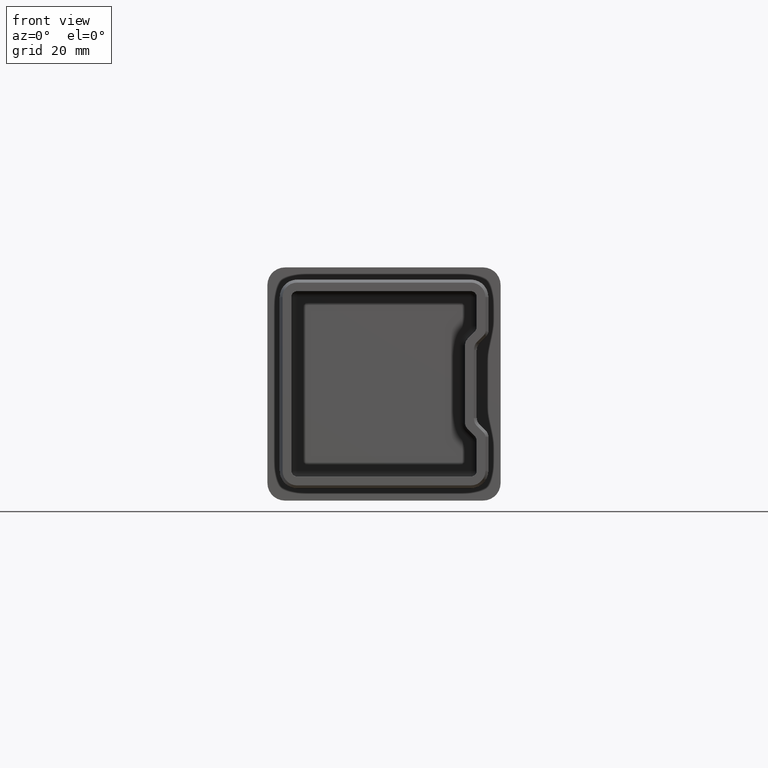
[diagram: clean part render]
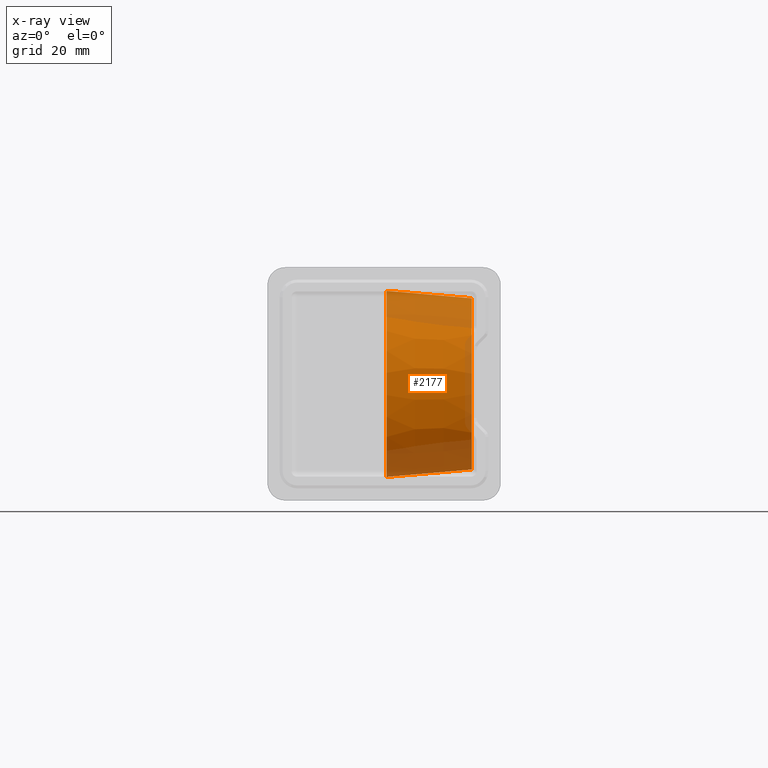
[diagram: x-ray — body ghosted, one internal face saturated and labeled with its STEP entity id]
A machine part, front view, then the same camera in x-ray: the body is ghosted and one INTERNAL B-rep face — a face not visible from any outside direction — is saturated and labeled: STEP entity #2177.
In plain terms, the highlighted conical surface has half-angle 5 deg.
Its self-contained STEP definition (entity closure, byte-faithful):
#324 = EDGE_CURVE ( 'NONE', #8974, #8974, #1633, .T. ) ;
#1454 = DIRECTION ( 'NONE',  ( 1.000000000000000000, -2.948456652445599100E-033, 0.0000000000000000000 ) ) ;
#1525 = CARTESIAN_POINT ( 'NONE',  ( -0.4564221286261737100, 25.99999999999999600, 1.034676164340414600E-016 ) ) ;
#1633 = CIRCLE ( 'NONE', #13233, 15.96006823796284200 ) ;
#2177 = ADVANCED_FACE ( 'NONE', ( #16968, #2476 ), #13663, .F. ) ;
#2476 = FACE_BOUND ( 'NONE', #5482, .T. ) ;
#2807 = DIRECTION ( 'NONE',  ( 0.0000000000000000000, 0.0000000000000000000, -1.000000000000000000 ) ) ;
#3029 = DIRECTION ( 'NONE',  ( 0.0000000000000000000, 0.0000000000000000000, -1.000000000000000000 ) ) ;
#3459 = CARTESIAN_POINT ( 'NONE',  ( -0.4564221286261737100, 25.99999999999999600, -15.96006823796284200 ) ) ;
#4286 = AXIS2_PLACEMENT_3D ( 'NONE', #9714, #1454, #3029 ) ;
#4828 = CARTESIAN_POINT ( 'NONE',  ( -15.04357787137380800, 25.99999999999999600, -1.540743955509788700E-030 ) ) ;
#5335 = CIRCLE ( 'NONE', #5668, 14.68385747738549300 ) ;
#5482 = EDGE_LOOP ( 'NONE', ( #8393 ) ) ;
#5668 = AXIS2_PLACEMENT_3D ( 'NONE', #4828, #14681, #10619 ) ;
#6969 = ORIENTED_EDGE ( 'NONE', *, *, #324, .T. ) ;
#8393 = ORIENTED_EDGE ( 'NONE', *, *, #13837, .T. ) ;
#8974 = VERTEX_POINT ( 'NONE', #3459 ) ;
#9714 = CARTESIAN_POINT ( 'NONE',  ( 5.204170427930421300E-015, 25.99999999999999600, 0.0000000000000000000 ) ) ;
#10619 = DIRECTION ( 'NONE',  ( 0.0000000000000000000, 0.0000000000000000000, -1.000000000000000000 ) ) ;
#11203 = DIRECTION ( 'NONE',  ( 1.000000000000000000, -2.948456652445599100E-033, 0.0000000000000000000 ) ) ;
#11616 = CARTESIAN_POINT ( 'NONE',  ( -15.04357787137380800, 25.99999999999999600, -14.68385747738549300 ) ) ;
#11742 = EDGE_LOOP ( 'NONE', ( #6969 ) ) ;
#13233 = AXIS2_PLACEMENT_3D ( 'NONE', #1525, #11203, #2807 ) ;
#13663 = CONICAL_SURFACE ( 'NONE', #4286, 15.99999999999999600, 0.08726646259970623200 ) ;
#13837 = EDGE_CURVE ( 'NONE', #17337, #17337, #5335, .T. ) ;
#14681 = DIRECTION ( 'NONE',  ( -1.000000000000000000, 2.948456652445599100E-033, -0.0000000000000000000 ) ) ;
#16968 = FACE_OUTER_BOUND ( 'NONE', #11742, .T. ) ;
#17337 = VERTEX_POINT ( 'NONE', #11616 ) ;